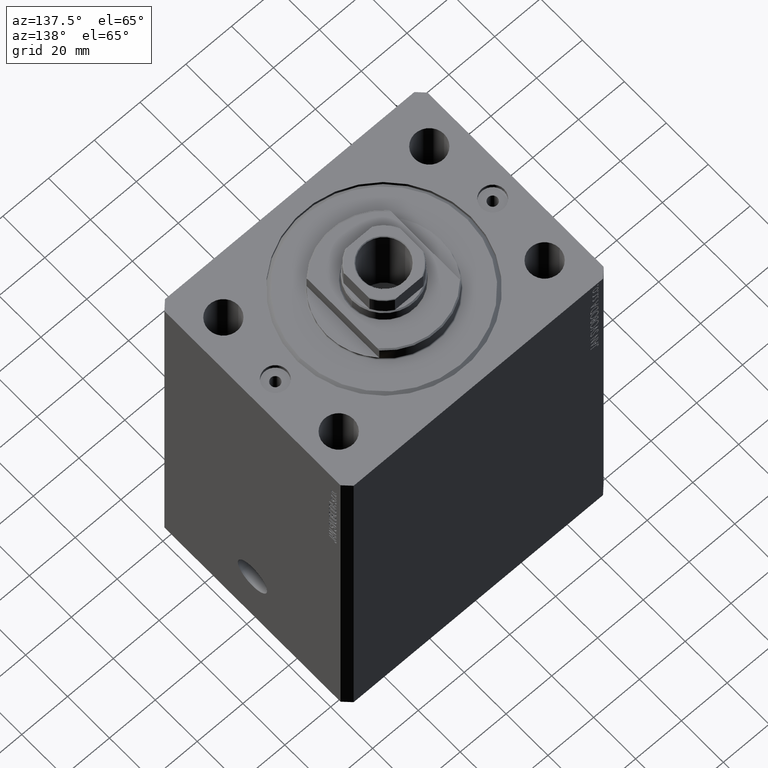
[diagram: clean part render]
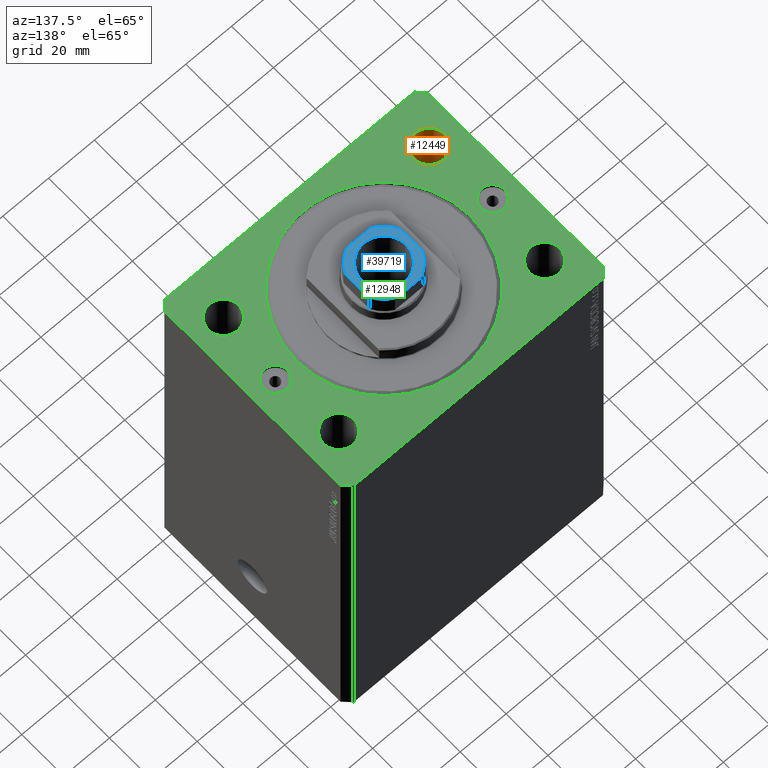
[diagram: same view with three faces highlighted in distinct colors, each labeled with its STEP entity id]
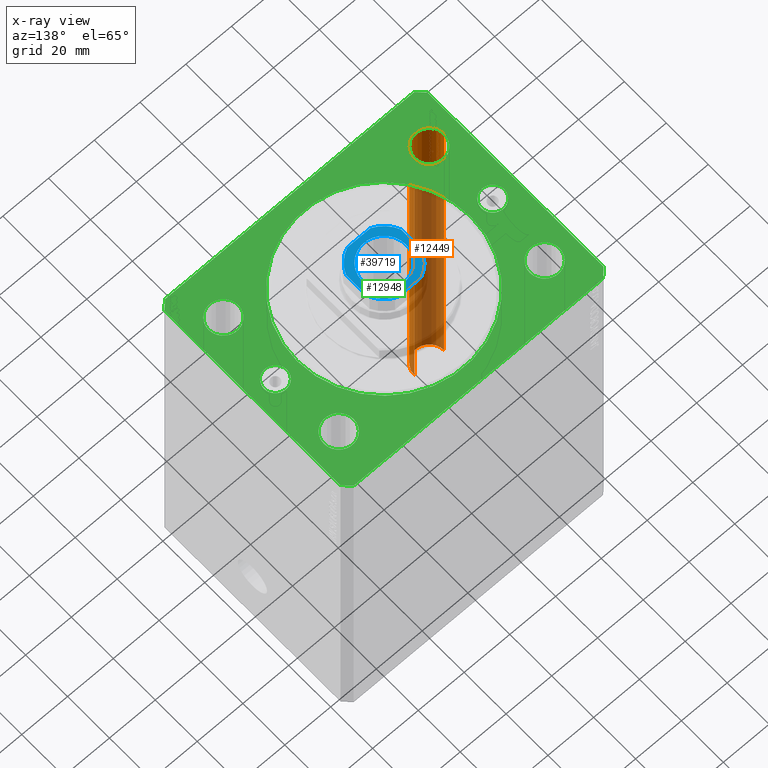
[diagram: x-ray of the same camera — body ghosted, the three highlighted faces saturated]
A machine part, auxiliary view with three faces highlighted in distinct colors.
The next image is the same camera in x-ray (body ghosted, the three faces saturated) — at least one of them is partly hidden behind the body in this view.
Their STEP definitions:

[orange] entity #12449 — the highlighted cylindrical surface (edge-blend (fillet) strip) has radius 6.5 mm, axis along (0, 0, 1).
#836 = CARTESIAN_POINT ( 'NONE',  ( -38.49999999999998579, -27.50000000000000355, 0.000000000000000000 ) ) ;
#7101 = DIRECTION ( 'NONE',  ( -0.000000000000000000, -0.000000000000000000, 1.000000000000000000 ) ) ;
#7331 = DIRECTION ( 'NONE',  ( 1.000000000000000000, 0.000000000000000000, 0.000000000000000000 ) ) ;
#7642 = AXIS2_PLACEMENT_3D ( 'NONE', #38198, #41782, #7645 ) ;
#7645 = DIRECTION ( 'NONE',  ( 1.000000000000000000, 0.000000000000000000, 0.000000000000000000 ) ) ;
#10354 = DIRECTION ( 'NONE',  ( -0.000000000000000000, -0.000000000000000000, -1.000000000000000000 ) ) ;
#11444 = EDGE_CURVE ( 'NONE', #30744, #38792, #21243, .T. ) ;
#11985 = ORIENTED_EDGE ( 'NONE', *, *, #11444, .T. ) ;
#12449 = ADVANCED_FACE ( 'NONE', ( #31910 ), #28312, .F. ) ;
#13324 = AXIS2_PLACEMENT_3D ( 'NONE', #14516, #27793, #7331 ) ;
#14516 = CARTESIAN_POINT ( 'NONE',  ( -44.99999999999998579, -27.50000000000000355, 0.000000000000000000 ) ) ;
#16481 = EDGE_CURVE ( 'NONE', #38792, #25989, #36852, .T. ) ;
#16499 = ORIENTED_EDGE ( 'NONE', *, *, #16481, .T. ) ;
#18422 = CARTESIAN_POINT ( 'NONE',  ( -38.49999999999998579, -27.50000000000000355, -165.0000000000000000 ) ) ;
#21243 = CIRCLE ( 'NONE', #39167, 6.499999999999999112 ) ;
#22079 = VECTOR ( 'NONE', #40430, 1000.000000000000000 ) ;
#22365 = VERTEX_POINT ( 'NONE', #836 ) ;
#23513 = LINE ( 'NONE', #34510, #33364 ) ;
#24059 = DIRECTION ( 'NONE',  ( 1.000000000000000000, 0.000000000000000000, 0.000000000000000000 ) ) ;
#25298 = ORIENTED_EDGE ( 'NONE', *, *, #27549, .F. ) ;
#25989 = VERTEX_POINT ( 'NONE', #28527 ) ;
#27549 = EDGE_CURVE ( 'NONE', #30744, #22365, #23513, .T. ) ;
#27793 = DIRECTION ( 'NONE',  ( 0.000000000000000000, 0.000000000000000000, 1.000000000000000000 ) ) ;
#28312 = CYLINDRICAL_SURFACE ( 'NONE', #7642, 6.499999999999999112 ) ;
#28448 = EDGE_LOOP ( 'NONE', ( #11985, #16499, #29927, #25298 ) ) ;
#28527 = CARTESIAN_POINT ( 'NONE',  ( -51.49999999999998579, -27.50000000000000355, 0.000000000000000000 ) ) ;
#29380 = EDGE_CURVE ( 'NONE', #25989, #22365, #42010, .T. ) ;
#29927 = ORIENTED_EDGE ( 'NONE', *, *, #29380, .T. ) ;
#30744 = VERTEX_POINT ( 'NONE', #18422 ) ;
#31910 = FACE_OUTER_BOUND ( 'NONE', #28448, .T. ) ;
#33364 = VECTOR ( 'NONE', #7101, 1000.000000000000000 ) ;
#33485 = CARTESIAN_POINT ( 'NONE',  ( -51.49999999999998579, -27.50000000000000355, -183.3847763108502420 ) ) ;
#34510 = CARTESIAN_POINT ( 'NONE',  ( -38.49999999999998579, -27.50000000000000355, -183.3847763108502420 ) ) ;
#36852 = LINE ( 'NONE', #33485, #22079 ) ;
#38198 = CARTESIAN_POINT ( 'NONE',  ( -44.99999999999998579, -27.50000000000000355, -183.3847763108502420 ) ) ;
#38792 = VERTEX_POINT ( 'NONE', #43252 ) ;
#39167 = AXIS2_PLACEMENT_3D ( 'NONE', #41123, #10354, #24059 ) ;
#40430 = DIRECTION ( 'NONE',  ( -0.000000000000000000, -0.000000000000000000, 1.000000000000000000 ) ) ;
#41123 = CARTESIAN_POINT ( 'NONE',  ( -44.99999999999998579, -27.50000000000000355, -165.0000000000000000 ) ) ;
#41782 = DIRECTION ( 'NONE',  ( -0.000000000000000000, -0.000000000000000000, 1.000000000000000000 ) ) ;
#42010 = CIRCLE ( 'NONE', #13324, 6.499999999999999112 ) ;
#43252 = CARTESIAN_POINT ( 'NONE',  ( -51.49999999999998579, -27.50000000000000355, -165.0000000000000000 ) ) ;

[blue] entity #39719 — the highlighted planar face has unit normal (0, 0, 1).
#377 = DIRECTION ( 'NONE',  ( -1.000000000000000000, -7.228014483236695816E-17, -0.000000000000000000 ) ) ;
#1136 = DIRECTION ( 'NONE',  ( 1.000000000000000000, 0.000000000000000000, 0.000000000000000000 ) ) ;
#1158 = EDGE_CURVE ( 'NONE', #21856, #3444, #20255, .T. ) ;
#1387 = ORIENTED_EDGE ( 'NONE', *, *, #28783, .T. ) ;
#1612 = DIRECTION ( 'NONE',  ( 1.000000000000000000, 0.000000000000000000, 0.000000000000000000 ) ) ;
#1756 = AXIS2_PLACEMENT_3D ( 'NONE', #27661, #10355, #13735 ) ;
#2599 = VERTEX_POINT ( 'NONE', #6054 ) ;
#3444 = VERTEX_POINT ( 'NONE', #24808 ) ;
#3700 = VERTEX_POINT ( 'NONE', #19281 ) ;
#4464 = VERTEX_POINT ( 'NONE', #10380 ) ;
#4584 = ORIENTED_EDGE ( 'NONE', *, *, #43775, .T. ) ;
#6054 = CARTESIAN_POINT ( 'NONE',  ( 12.00000000000000178, -4.999999999999990230, 167.1000000000000227 ) ) ;
#6152 = CARTESIAN_POINT ( 'NONE',  ( 0.000000000000000000, 0.000000000000000000, 167.1000000000000227 ) ) ;
#6221 = ORIENTED_EDGE ( 'NONE', *, *, #7971, .T. ) ;
#6633 = ORIENTED_EDGE ( 'NONE', *, *, #1158, .T. ) ;
#6912 = EDGE_CURVE ( 'NONE', #3700, #40503, #24494, .T. ) ;
#7780 = CARTESIAN_POINT ( 'NONE',  ( -4.999999999999992895, -12.00000000000000178, 167.1000000000000227 ) ) ;
#7971 = EDGE_CURVE ( 'NONE', #4464, #20035, #31185, .T. ) ;
#8189 = CARTESIAN_POINT ( 'NONE',  ( -11.99999999999999645, -12.00000000000000178, 167.1000000000000227 ) ) ;
#9521 = DIRECTION ( 'NONE',  ( 1.000000000000000000, 0.000000000000000000, 0.000000000000000000 ) ) ;
#10051 = ORIENTED_EDGE ( 'NONE', *, *, #38568, .T. ) ;
#10091 = ORIENTED_EDGE ( 'NONE', *, *, #27821, .T. ) ;
#10355 = DIRECTION ( 'NONE',  ( -0.000000000000000000, 0.000000000000000000, 1.000000000000000000 ) ) ;
#10380 = CARTESIAN_POINT ( 'NONE',  ( -9.550000000000002487, 1.169537693185722755E-15, 167.1000000000000227 ) ) ;
#10650 = ORIENTED_EDGE ( 'NONE', *, *, #24002, .T. ) ;
#11102 = CARTESIAN_POINT ( 'NONE',  ( -5.000000000000001776, 11.99999999999999822, 167.1000000000000227 ) ) ;
#11607 = FACE_OUTER_BOUND ( 'NONE', #27260, .T. ) ;
#12477 = CARTESIAN_POINT ( 'NONE',  ( 12.00000000000000178, 4.999999999999994671, 167.1000000000000227 ) ) ;
#12729 = AXIS2_PLACEMENT_3D ( 'NONE', #31400, #24648, #41934 ) ;
#13648 = ORIENTED_EDGE ( 'NONE', *, *, #39463, .T. ) ;
#13735 = DIRECTION ( 'NONE',  ( 1.000000000000000000, 0.000000000000000000, 0.000000000000000000 ) ) ;
#14392 = DIRECTION ( 'NONE',  ( 7.228014483236695816E-17, -1.000000000000000000, 0.000000000000000000 ) ) ;
#15589 = VECTOR ( 'NONE', #377, 1000.000000000000000 ) ;
#16017 = CIRCLE ( 'NONE', #34685, 13.00000000000000000 ) ;
#16084 = VECTOR ( 'NONE', #14392, 1000.000000000000000 ) ;
#16714 = DIRECTION ( 'NONE',  ( -0.000000000000000000, 0.000000000000000000, 1.000000000000000000 ) ) ;
#17085 = CARTESIAN_POINT ( 'NONE',  ( 12.00000000000000000, 12.00000000000000000, 167.1000000000000227 ) ) ;
#18032 = CARTESIAN_POINT ( 'NONE',  ( 0.000000000000000000, 0.000000000000000000, 167.1000000000000227 ) ) ;
#19281 = CARTESIAN_POINT ( 'NONE',  ( -11.99999999999999822, 5.000000000000000888, 167.1000000000000227 ) ) ;
#20035 = VERTEX_POINT ( 'NONE', #34736 ) ;
#20255 = CIRCLE ( 'NONE', #31739, 13.00000000000000000 ) ;
#20450 = EDGE_LOOP ( 'NONE', ( #13648, #6221 ) ) ;
#20452 = DIRECTION ( 'NONE',  ( -1.445602896647339163E-16, 1.000000000000000000, -0.000000000000000000 ) ) ;
#21153 = AXIS2_PLACEMENT_3D ( 'NONE', #18032, #33004, #1136 ) ;
#21856 = VERTEX_POINT ( 'NONE', #12477 ) ;
#21897 = DIRECTION ( 'NONE',  ( 1.000000000000000000, 7.228014483236695816E-17, 0.000000000000000000 ) ) ;
#22955 = VERTEX_POINT ( 'NONE', #11102 ) ;
#23771 = ORIENTED_EDGE ( 'NONE', *, *, #31067, .T. ) ;
#24002 = EDGE_CURVE ( 'NONE', #38849, #2599, #16017, .T. ) ;
#24494 = LINE ( 'NONE', #41997, #16084 ) ;
#24648 = DIRECTION ( 'NONE',  ( -0.000000000000000000, 0.000000000000000000, 1.000000000000000000 ) ) ;
#24666 = LINE ( 'NONE', #38147, #15589 ) ;
#24808 = CARTESIAN_POINT ( 'NONE',  ( 5.000000000000002665, 12.00000000000000000, 167.1000000000000227 ) ) ;
#25297 = FACE_BOUND ( 'NONE', #20450, .T. ) ;
#26914 = CIRCLE ( 'NONE', #1756, 13.00000000000000000 ) ;
#27260 = EDGE_LOOP ( 'NONE', ( #31174, #1387, #23771, #10650, #10051, #6633, #4584, #10091 ) ) ;
#27499 = CARTESIAN_POINT ( 'NONE',  ( 0.000000000000000000, 0.000000000000000000, 167.1000000000000227 ) ) ;
#27661 = CARTESIAN_POINT ( 'NONE',  ( 0.000000000000000000, 0.000000000000000000, 167.1000000000000227 ) ) ;
#27778 = VECTOR ( 'NONE', #20452, 1000.000000000000000 ) ;
#27821 = EDGE_CURVE ( 'NONE', #22955, #3700, #26914, .T. ) ;
#28030 = PLANE ( 'NONE',  #12729 ) ;
#28430 = LINE ( 'NONE', #8189, #44225 ) ;
#28531 = CARTESIAN_POINT ( 'NONE',  ( 0.000000000000000000, 0.000000000000000000, 167.1000000000000227 ) ) ;
#28783 = EDGE_CURVE ( 'NONE', #40503, #37164, #31238, .T. ) ;
#28960 = DIRECTION ( 'NONE',  ( 0.000000000000000000, -0.000000000000000000, -1.000000000000000000 ) ) ;
#31067 = EDGE_CURVE ( 'NONE', #37164, #38849, #28430, .T. ) ;
#31174 = ORIENTED_EDGE ( 'NONE', *, *, #6912, .T. ) ;
#31185 = CIRCLE ( 'NONE', #21153, 9.550000000000002487 ) ;
#31238 = CIRCLE ( 'NONE', #32679, 13.00000000000000000 ) ;
#31399 = CIRCLE ( 'NONE', #37839, 9.550000000000002487 ) ;
#31400 = CARTESIAN_POINT ( 'NONE',  ( 0.000000000000000000, 0.000000000000000000, 167.1000000000000227 ) ) ;
#31739 = AXIS2_PLACEMENT_3D ( 'NONE', #6152, #16714, #9521 ) ;
#31830 = LINE ( 'NONE', #17085, #27778 ) ;
#32679 = AXIS2_PLACEMENT_3D ( 'NONE', #27499, #34471, #40518 ) ;
#33004 = DIRECTION ( 'NONE',  ( 0.000000000000000000, -0.000000000000000000, -1.000000000000000000 ) ) ;
#34471 = DIRECTION ( 'NONE',  ( -0.000000000000000000, 0.000000000000000000, 1.000000000000000000 ) ) ;
#34685 = AXIS2_PLACEMENT_3D ( 'NONE', #39406, #35814, #1612 ) ;
#34736 = CARTESIAN_POINT ( 'NONE',  ( 9.550000000000002487, 0.000000000000000000, 167.1000000000000227 ) ) ;
#35814 = DIRECTION ( 'NONE',  ( -0.000000000000000000, 0.000000000000000000, 1.000000000000000000 ) ) ;
#37164 = VERTEX_POINT ( 'NONE', #7780 ) ;
#37839 = AXIS2_PLACEMENT_3D ( 'NONE', #28531, #28960, #42657 ) ;
#38147 = CARTESIAN_POINT ( 'NONE',  ( -11.99999999999999822, 11.99999999999999822, 167.1000000000000227 ) ) ;
#38517 = CARTESIAN_POINT ( 'NONE',  ( 4.999999999999993783, -12.00000000000000178, 167.1000000000000227 ) ) ;
#38568 = EDGE_CURVE ( 'NONE', #2599, #21856, #31830, .T. ) ;
#38849 = VERTEX_POINT ( 'NONE', #38517 ) ;
#39406 = CARTESIAN_POINT ( 'NONE',  ( 0.000000000000000000, 0.000000000000000000, 167.1000000000000227 ) ) ;
#39463 = EDGE_CURVE ( 'NONE', #20035, #4464, #31399, .T. ) ;
#39719 = ADVANCED_FACE ( 'NONE', ( #25297, #11607 ), #28030, .T. ) ;
#40503 = VERTEX_POINT ( 'NONE', #41716 ) ;
#40518 = DIRECTION ( 'NONE',  ( 1.000000000000000000, 0.000000000000000000, 0.000000000000000000 ) ) ;
#41716 = CARTESIAN_POINT ( 'NONE',  ( -11.99999999999999822, -5.000000000000001776, 167.1000000000000227 ) ) ;
#41934 = DIRECTION ( 'NONE',  ( 1.000000000000000000, 0.000000000000000000, 0.000000000000000000 ) ) ;
#41997 = CARTESIAN_POINT ( 'NONE',  ( -11.99999999999999822, 11.99999999999999822, 167.1000000000000227 ) ) ;
#42657 = DIRECTION ( 'NONE',  ( 1.000000000000000000, 0.000000000000000000, 0.000000000000000000 ) ) ;
#43775 = EDGE_CURVE ( 'NONE', #3444, #22955, #24666, .T. ) ;
#44225 = VECTOR ( 'NONE', #21897, 1000.000000000000000 ) ;

[green] entity #12948 — the highlighted planar face has unit normal (0, 0, 1).
#104 = FACE_BOUND ( 'NONE', #5875, .T. ) ;
#461 = CARTESIAN_POINT ( 'NONE',  ( -57.50000000000000711, -42.00000000000000711, 0.000000000000000000 ) ) ;
#588 = EDGE_CURVE ( 'NONE', #21328, #4217, #21062, .T. ) ;
#836 = CARTESIAN_POINT ( 'NONE',  ( -38.49999999999998579, -27.50000000000000355, 0.000000000000000000 ) ) ;
#1527 = EDGE_CURVE ( 'NONE', #27226, #35218, #19552, .T. ) ;
#1626 = LINE ( 'NONE', #22126, #11945 ) ;
#1850 = ORIENTED_EDGE ( 'NONE', *, *, #35269, .F. ) ;
#1910 = CARTESIAN_POINT ( 'NONE',  ( -54.50000000000000711, -45.00000000000000000, 0.000000000000000000 ) ) ;
#2472 = VERTEX_POINT ( 'NONE', #4511 ) ;
#2633 = CIRCLE ( 'NONE', #20585, 6.499999999999999112 ) ;
#3392 = DIRECTION ( 'NONE',  ( 1.000000000000000000, 1.273191542001326317E-16, 0.000000000000000000 ) ) ;
#3478 = VECTOR ( 'NONE', #20245, 1000.000000000000000 ) ;
#3822 = CARTESIAN_POINT ( 'NONE',  ( 54.50000000000059686, 45.00000000000002842, 0.000000000000000000 ) ) ;
#3849 = DIRECTION ( 'NONE',  ( 0.7071067811865491270, -0.7071067811865459074, 0.000000000000000000 ) ) ;
#3938 = AXIS2_PLACEMENT_3D ( 'NONE', #29690, #33735, #13064 ) ;
#4110 = AXIS2_PLACEMENT_3D ( 'NONE', #29058, #35353, #38946 ) ;
#4213 = EDGE_LOOP ( 'NONE', ( #18303, #33995 ) ) ;
#4217 = VERTEX_POINT ( 'NONE', #14267 ) ;
#4264 = CIRCLE ( 'NONE', #10004, 6.499999999999999112 ) ;
#4467 = AXIS2_PLACEMENT_3D ( 'NONE', #16455, #16227, #9925 ) ;
#4511 = CARTESIAN_POINT ( 'NONE',  ( 42.50000000000000000, 6.123233995736762338E-16, 0.000000000000000000 ) ) ;
#4677 = DIRECTION ( 'NONE',  ( 1.000000000000000000, 0.000000000000000000, 0.000000000000000000 ) ) ;
#4898 = DIRECTION ( 'NONE',  ( 0.000000000000000000, 0.000000000000000000, 1.000000000000000000 ) ) ;
#5039 = DIRECTION ( 'NONE',  ( -1.000000000000000000, -2.546383084002638829E-16, 0.000000000000000000 ) ) ;
#5497 = VECTOR ( 'NONE', #28998, 1000.000000000000000 ) ;
#5720 = AXIS2_PLACEMENT_3D ( 'NONE', #10986, #17736, #4677 ) ;
#5843 = ORIENTED_EDGE ( 'NONE', *, *, #17723, .F. ) ;
#5875 = EDGE_LOOP ( 'NONE', ( #35295, #37720 ) ) ;
#6075 = VERTEX_POINT ( 'NONE', #8781 ) ;
#7134 = EDGE_LOOP ( 'NONE', ( #38360, #24825 ) ) ;
#7331 = DIRECTION ( 'NONE',  ( 1.000000000000000000, 0.000000000000000000, 0.000000000000000000 ) ) ;
#7516 = CARTESIAN_POINT ( 'NONE',  ( -57.49999999999998579, 42.00000000000000711, 0.000000000000000000 ) ) ;
#7932 = VERTEX_POINT ( 'NONE', #38471 ) ;
#8093 = CARTESIAN_POINT ( 'NONE',  ( 57.50000000000055422, 41.99999999999997868, 0.000000000000000000 ) ) ;
#8136 = DIRECTION ( 'NONE',  ( 1.000000000000000000, 0.000000000000000000, 0.000000000000000000 ) ) ;
#8225 = VERTEX_POINT ( 'NONE', #1910 ) ;
#8336 = ORIENTED_EDGE ( 'NONE', *, *, #37739, .T. ) ;
#8624 = CARTESIAN_POINT ( 'NONE',  ( -51.50000000000000000, 27.49999999999999645, 0.000000000000000000 ) ) ;
#8781 = CARTESIAN_POINT ( 'NONE',  ( 57.50000000000000711, -41.99999999999998579, 0.000000000000000000 ) ) ;
#8809 = EDGE_CURVE ( 'NONE', #38682, #30532, #29799, .T. ) ;
#9356 = CARTESIAN_POINT ( 'NONE',  ( 0.000000000000000000, 0.000000000000000000, 0.000000000000000000 ) ) ;
#9611 = DIRECTION ( 'NONE',  ( 0.000000000000000000, 0.000000000000000000, 1.000000000000000000 ) ) ;
#9694 = EDGE_LOOP ( 'NONE', ( #43820, #33335 ) ) ;
#9770 = CIRCLE ( 'NONE', #15519, 6.499999999999999112 ) ;
#9901 = VECTOR ( 'NONE', #42539, 1000.000000000000000 ) ;
#9923 = CARTESIAN_POINT ( 'NONE',  ( -54.50000000000000711, -45.00000000000000000, 0.000000000000000000 ) ) ;
#9925 = DIRECTION ( 'NONE',  ( 1.000000000000000000, 0.000000000000000000, 0.000000000000000000 ) ) ;
#9970 = EDGE_CURVE ( 'NONE', #26350, #6075, #36921, .T. ) ;
#10004 = AXIS2_PLACEMENT_3D ( 'NONE', #42421, #4898, #25795 ) ;
#10766 = LINE ( 'NONE', #11641, #30637 ) ;
#10986 = CARTESIAN_POINT ( 'NONE',  ( -44.99999999999998579, -27.50000000000000355, 0.000000000000000000 ) ) ;
#11345 = ORIENTED_EDGE ( 'NONE', *, *, #32431, .T. ) ;
#11641 = CARTESIAN_POINT ( 'NONE',  ( -54.49999999999999289, 45.00000000000000000, 0.000000000000000000 ) ) ;
#11945 = VECTOR ( 'NONE', #5039, 1000.000000000000000 ) ;
#12625 = CARTESIAN_POINT ( 'NONE',  ( -57.50000000000000711, -42.00000000000000711, 0.000000000000000000 ) ) ;
#12948 = ADVANCED_FACE ( 'NONE', ( #26663, #40799, #23736, #13631, #104, #16761, #43736, #16548 ), #40344, .T. ) ;
#13030 = CARTESIAN_POINT ( 'NONE',  ( -54.49999999999999289, 45.00000000000000000, 0.000000000000000000 ) ) ;
#13064 = DIRECTION ( 'NONE',  ( 1.000000000000000000, 0.000000000000000000, 0.000000000000000000 ) ) ;
#13226 = VERTEX_POINT ( 'NONE', #12625 ) ;
#13291 = AXIS2_PLACEMENT_3D ( 'NONE', #24773, #38477, #8136 ) ;
#13324 = AXIS2_PLACEMENT_3D ( 'NONE', #14516, #27793, #7331 ) ;
#13440 = DIRECTION ( 'NONE',  ( 1.000000000000000000, 0.000000000000000000, 0.000000000000000000 ) ) ;
#13631 = FACE_BOUND ( 'NONE', #21352, .T. ) ;
#13692 = DIRECTION ( 'NONE',  ( 0.000000000000000000, 0.000000000000000000, 1.000000000000000000 ) ) ;
#14184 = CIRCLE ( 'NONE', #42873, 6.499999999999999112 ) ;
#14267 = CARTESIAN_POINT ( 'NONE',  ( -42.50000000000000000, 0.000000000000000000, 0.000000000000000000 ) ) ;
#14400 = ORIENTED_EDGE ( 'NONE', *, *, #9970, .T. ) ;
#14434 = EDGE_CURVE ( 'NONE', #7932, #26284, #37087, .T. ) ;
#14516 = CARTESIAN_POINT ( 'NONE',  ( -44.99999999999998579, -27.50000000000000355, 0.000000000000000000 ) ) ;
#14530 = CARTESIAN_POINT ( 'NONE',  ( 38.49999999999998579, -27.50000000000000355, 0.000000000000000000 ) ) ;
#14702 = CARTESIAN_POINT ( 'NONE',  ( 52.50000000000000000, 0.000000000000000000, 0.000000000000000000 ) ) ;
#14715 = ORIENTED_EDGE ( 'NONE', *, *, #8809, .F. ) ;
#14859 = CARTESIAN_POINT ( 'NONE',  ( 57.50000000000055422, 41.99999999999997868, 0.000000000000000000 ) ) ;
#15411 = DIRECTION ( 'NONE',  ( 1.000000000000000000, 0.000000000000000000, 0.000000000000000000 ) ) ;
#15516 = LINE ( 'NONE', #14859, #5497 ) ;
#15519 = AXIS2_PLACEMENT_3D ( 'NONE', #15810, #43194, #33763 ) ;
#15810 = CARTESIAN_POINT ( 'NONE',  ( 44.99999999999998579, -27.50000000000000355, 0.000000000000000000 ) ) ;
#15922 = CARTESIAN_POINT ( 'NONE',  ( 45.00000000000000000, 27.49999999999999289, 0.000000000000000000 ) ) ;
#15932 = ORIENTED_EDGE ( 'NONE', *, *, #42770, .F. ) ;
#16039 = EDGE_CURVE ( 'NONE', #2472, #18903, #23494, .T. ) ;
#16057 = DIRECTION ( 'NONE',  ( 1.000000000000000000, 0.000000000000000000, 0.000000000000000000 ) ) ;
#16227 = DIRECTION ( 'NONE',  ( 0.000000000000000000, 0.000000000000000000, 1.000000000000000000 ) ) ;
#16244 = EDGE_CURVE ( 'NONE', #13226, #8225, #17138, .T. ) ;
#16455 = CARTESIAN_POINT ( 'NONE',  ( 45.00000000000000000, 27.49999999999999289, 0.000000000000000000 ) ) ;
#16484 = CARTESIAN_POINT ( 'NONE',  ( 54.50000000000000711, -44.99999999999998579, 0.000000000000000000 ) ) ;
#16548 = FACE_BOUND ( 'NONE', #7134, .T. ) ;
#16761 = FACE_BOUND ( 'NONE', #9694, .T. ) ;
#17061 = CARTESIAN_POINT ( 'NONE',  ( -45.00000000000000000, 27.49999999999999645, 0.000000000000000000 ) ) ;
#17138 = LINE ( 'NONE', #461, #28537 ) ;
#17555 = DIRECTION ( 'NONE',  ( 0.000000000000000000, 0.000000000000000000, 1.000000000000000000 ) ) ;
#17723 = EDGE_CURVE ( 'NONE', #33431, #26732, #4264, .T. ) ;
#17736 = DIRECTION ( 'NONE',  ( 0.000000000000000000, 0.000000000000000000, 1.000000000000000000 ) ) ;
#18303 = ORIENTED_EDGE ( 'NONE', *, *, #34141, .F. ) ;
#18479 = AXIS2_PLACEMENT_3D ( 'NONE', #37023, #40835, #13440 ) ;
#18588 = VERTEX_POINT ( 'NONE', #24427 ) ;
#18874 = EDGE_CURVE ( 'NONE', #18588, #13226, #21452, .T. ) ;
#18903 = VERTEX_POINT ( 'NONE', #14702 ) ;
#19313 = EDGE_CURVE ( 'NONE', #6075, #44333, #43836, .T. ) ;
#19552 = CIRCLE ( 'NONE', #4467, 6.499999999999999112 ) ;
#19867 = VECTOR ( 'NONE', #3392, 1000.000000000000000 ) ;
#20245 = DIRECTION ( 'NONE',  ( 6.443258625056715108E-15, 1.000000000000000000, 0.000000000000000000 ) ) ;
#20431 = DIRECTION ( 'NONE',  ( 1.000000000000000000, 0.000000000000000000, 0.000000000000000000 ) ) ;
#20521 = ORIENTED_EDGE ( 'NONE', *, *, #18874, .T. ) ;
#20585 = AXIS2_PLACEMENT_3D ( 'NONE', #17061, #13692, #20431 ) ;
#21062 = CIRCLE ( 'NONE', #28147, 4.999999999999997335 ) ;
#21328 = VERTEX_POINT ( 'NONE', #32640 ) ;
#21352 = EDGE_LOOP ( 'NONE', ( #1850, #14715 ) ) ;
#21452 = LINE ( 'NONE', #7516, #9901 ) ;
#21718 = ORIENTED_EDGE ( 'NONE', *, *, #40365, .F. ) ;
#22126 = CARTESIAN_POINT ( 'NONE',  ( 54.50000000000059686, 45.00000000000002842, 0.000000000000000000 ) ) ;
#22330 = EDGE_CURVE ( 'NONE', #22365, #25989, #25100, .T. ) ;
#22365 = VERTEX_POINT ( 'NONE', #836 ) ;
#23494 = CIRCLE ( 'NONE', #4110, 4.999999999999997335 ) ;
#23736 = FACE_BOUND ( 'NONE', #33294, .T. ) ;
#24159 = AXIS2_PLACEMENT_3D ( 'NONE', #9356, #30917, #30460 ) ;
#24427 = CARTESIAN_POINT ( 'NONE',  ( -57.49999999999998579, 42.00000000000000711, 0.000000000000000000 ) ) ;
#24773 = CARTESIAN_POINT ( 'NONE',  ( 44.99999999999998579, -27.50000000000000355, 0.000000000000000000 ) ) ;
#24825 = ORIENTED_EDGE ( 'NONE', *, *, #16039, .T. ) ;
#24868 = CARTESIAN_POINT ( 'NONE',  ( 38.00000000000000000, 0.000000000000000000, 0.000000000000000000 ) ) ;
#25100 = CIRCLE ( 'NONE', #5720, 6.499999999999999112 ) ;
#25430 = CARTESIAN_POINT ( 'NONE',  ( 51.49999999999998579, -27.50000000000000355, 0.000000000000000000 ) ) ;
#25795 = DIRECTION ( 'NONE',  ( 1.000000000000000000, 0.000000000000000000, 0.000000000000000000 ) ) ;
#25989 = VERTEX_POINT ( 'NONE', #28527 ) ;
#26284 = VERTEX_POINT ( 'NONE', #24868 ) ;
#26350 = VERTEX_POINT ( 'NONE', #36306 ) ;
#26663 = FACE_OUTER_BOUND ( 'NONE', #29561, .T. ) ;
#26732 = VERTEX_POINT ( 'NONE', #8624 ) ;
#27226 = VERTEX_POINT ( 'NONE', #28473 ) ;
#27712 = EDGE_CURVE ( 'NONE', #26284, #7932, #36247, .T. ) ;
#27793 = DIRECTION ( 'NONE',  ( 0.000000000000000000, 0.000000000000000000, 1.000000000000000000 ) ) ;
#27900 = EDGE_LOOP ( 'NONE', ( #5843, #15932 ) ) ;
#28147 = AXIS2_PLACEMENT_3D ( 'NONE', #32485, #39882, #15411 ) ;
#28473 = CARTESIAN_POINT ( 'NONE',  ( 51.50000000000000000, 27.49999999999999289, 0.000000000000000000 ) ) ;
#28527 = CARTESIAN_POINT ( 'NONE',  ( -51.49999999999998579, -27.50000000000000355, 0.000000000000000000 ) ) ;
#28537 = VECTOR ( 'NONE', #3849, 1000.000000000000114 ) ;
#28732 = ORIENTED_EDGE ( 'NONE', *, *, #16244, .T. ) ;
#28998 = DIRECTION ( 'NONE',  ( -0.7071067811865369146, 0.7071067811865581199, 0.000000000000000000 ) ) ;
#29058 = CARTESIAN_POINT ( 'NONE',  ( 47.50000000000000000, 0.000000000000000000, 0.000000000000000000 ) ) ;
#29095 = VECTOR ( 'NONE', #29736, 1000.000000000000000 ) ;
#29253 = CIRCLE ( 'NONE', #18479, 4.999999999999997335 ) ;
#29380 = EDGE_CURVE ( 'NONE', #25989, #22365, #42010, .T. ) ;
#29561 = EDGE_LOOP ( 'NONE', ( #44427, #37245, #20521, #28732, #11345, #14400, #33005, #8336 ) ) ;
#29690 = CARTESIAN_POINT ( 'NONE',  ( 0.000000000000000000, 0.000000000000000000, 0.000000000000000000 ) ) ;
#29736 = DIRECTION ( 'NONE',  ( 0.7071067811865483499, 0.7071067811865466846, 0.000000000000000000 ) ) ;
#29799 = CIRCLE ( 'NONE', #13291, 6.499999999999999112 ) ;
#29985 = DIRECTION ( 'NONE',  ( 0.000000000000000000, 0.000000000000000000, 1.000000000000000000 ) ) ;
#30460 = DIRECTION ( 'NONE',  ( 1.000000000000000000, 0.000000000000000000, -0.000000000000000000 ) ) ;
#30532 = VERTEX_POINT ( 'NONE', #25430 ) ;
#30637 = VECTOR ( 'NONE', #35027, 1000.000000000000000 ) ;
#30917 = DIRECTION ( 'NONE',  ( 0.000000000000000000, 0.000000000000000000, 1.000000000000000000 ) ) ;
#31093 = EDGE_CURVE ( 'NONE', #38296, #37902, #1626, .T. ) ;
#31257 = LINE ( 'NONE', #9923, #19867 ) ;
#31702 = CARTESIAN_POINT ( 'NONE',  ( -38.50000000000000000, 27.49999999999999645, 0.000000000000000000 ) ) ;
#31766 = ORIENTED_EDGE ( 'NONE', *, *, #1527, .F. ) ;
#32431 = EDGE_CURVE ( 'NONE', #8225, #26350, #31257, .T. ) ;
#32485 = CARTESIAN_POINT ( 'NONE',  ( -47.50000000000000000, 0.000000000000000000, 0.000000000000000000 ) ) ;
#32640 = CARTESIAN_POINT ( 'NONE',  ( -52.50000000000000000, 6.123233995736762338E-16, 0.000000000000000000 ) ) ;
#32708 = EDGE_CURVE ( 'NONE', #37902, #18588, #10766, .T. ) ;
#33005 = ORIENTED_EDGE ( 'NONE', *, *, #19313, .T. ) ;
#33294 = EDGE_LOOP ( 'NONE', ( #31766, #21718 ) ) ;
#33335 = ORIENTED_EDGE ( 'NONE', *, *, #14434, .F. ) ;
#33431 = VERTEX_POINT ( 'NONE', #31702 ) ;
#33735 = DIRECTION ( 'NONE',  ( 0.000000000000000000, 0.000000000000000000, 1.000000000000000000 ) ) ;
#33763 = DIRECTION ( 'NONE',  ( 1.000000000000000000, 0.000000000000000000, 0.000000000000000000 ) ) ;
#33970 = CARTESIAN_POINT ( 'NONE',  ( -47.50000000000000000, 0.000000000000000000, 0.000000000000000000 ) ) ;
#33995 = ORIENTED_EDGE ( 'NONE', *, *, #588, .F. ) ;
#34141 = EDGE_CURVE ( 'NONE', #4217, #21328, #37705, .T. ) ;
#34942 = AXIS2_PLACEMENT_3D ( 'NONE', #39853, #29985, #16057 ) ;
#35027 = DIRECTION ( 'NONE',  ( -0.7071067811865483499, -0.7071067811865466846, 0.000000000000000000 ) ) ;
#35218 = VERTEX_POINT ( 'NONE', #42534 ) ;
#35269 = EDGE_CURVE ( 'NONE', #30532, #38682, #9770, .T. ) ;
#35295 = ORIENTED_EDGE ( 'NONE', *, *, #22330, .F. ) ;
#35353 = DIRECTION ( 'NONE',  ( 0.000000000000000000, -0.000000000000000000, -1.000000000000000000 ) ) ;
#36247 = CIRCLE ( 'NONE', #3938, 38.00000000000000000 ) ;
#36306 = CARTESIAN_POINT ( 'NONE',  ( 54.50000000000000711, -44.99999999999998579, 0.000000000000000000 ) ) ;
#36921 = LINE ( 'NONE', #16484, #29095 ) ;
#37003 = AXIS2_PLACEMENT_3D ( 'NONE', #33970, #17555, #41366 ) ;
#37023 = CARTESIAN_POINT ( 'NONE',  ( 47.50000000000000000, 0.000000000000000000, 0.000000000000000000 ) ) ;
#37087 = CIRCLE ( 'NONE', #34942, 38.00000000000000000 ) ;
#37245 = ORIENTED_EDGE ( 'NONE', *, *, #32708, .T. ) ;
#37705 = CIRCLE ( 'NONE', #37003, 4.999999999999997335 ) ;
#37720 = ORIENTED_EDGE ( 'NONE', *, *, #29380, .F. ) ;
#37739 = EDGE_CURVE ( 'NONE', #44333, #38296, #15516, .T. ) ;
#37902 = VERTEX_POINT ( 'NONE', #13030 ) ;
#38296 = VERTEX_POINT ( 'NONE', #3822 ) ;
#38360 = ORIENTED_EDGE ( 'NONE', *, *, #39602, .T. ) ;
#38471 = CARTESIAN_POINT ( 'NONE',  ( -38.00000000000000000, 4.653657836759941941E-15, 0.000000000000000000 ) ) ;
#38477 = DIRECTION ( 'NONE',  ( 0.000000000000000000, 0.000000000000000000, 1.000000000000000000 ) ) ;
#38682 = VERTEX_POINT ( 'NONE', #14530 ) ;
#38946 = DIRECTION ( 'NONE',  ( 1.000000000000000000, 0.000000000000000000, 0.000000000000000000 ) ) ;
#39602 = EDGE_CURVE ( 'NONE', #18903, #2472, #29253, .T. ) ;
#39853 = CARTESIAN_POINT ( 'NONE',  ( 0.000000000000000000, 0.000000000000000000, 0.000000000000000000 ) ) ;
#39882 = DIRECTION ( 'NONE',  ( 0.000000000000000000, 0.000000000000000000, 1.000000000000000000 ) ) ;
#39955 = DIRECTION ( 'NONE',  ( 1.000000000000000000, 0.000000000000000000, 0.000000000000000000 ) ) ;
#40344 = PLANE ( 'NONE',  #24159 ) ;
#40365 = EDGE_CURVE ( 'NONE', #35218, #27226, #14184, .T. ) ;
#40799 = FACE_BOUND ( 'NONE', #27900, .T. ) ;
#40835 = DIRECTION ( 'NONE',  ( 0.000000000000000000, -0.000000000000000000, -1.000000000000000000 ) ) ;
#40901 = CARTESIAN_POINT ( 'NONE',  ( 57.50000000000000711, -41.99999999999998579, 0.000000000000000000 ) ) ;
#41366 = DIRECTION ( 'NONE',  ( 1.000000000000000000, 0.000000000000000000, 0.000000000000000000 ) ) ;
#42010 = CIRCLE ( 'NONE', #13324, 6.499999999999999112 ) ;
#42421 = CARTESIAN_POINT ( 'NONE',  ( -45.00000000000000000, 27.49999999999999645, 0.000000000000000000 ) ) ;
#42534 = CARTESIAN_POINT ( 'NONE',  ( 38.50000000000000000, 27.49999999999999289, 0.000000000000000000 ) ) ;
#42539 = DIRECTION ( 'NONE',  ( -2.478176394252581141E-16, -1.000000000000000000, 0.000000000000000000 ) ) ;
#42770 = EDGE_CURVE ( 'NONE', #26732, #33431, #2633, .T. ) ;
#42873 = AXIS2_PLACEMENT_3D ( 'NONE', #15922, #9611, #39955 ) ;
#43194 = DIRECTION ( 'NONE',  ( 0.000000000000000000, 0.000000000000000000, 1.000000000000000000 ) ) ;
#43736 = FACE_BOUND ( 'NONE', #4213, .T. ) ;
#43820 = ORIENTED_EDGE ( 'NONE', *, *, #27712, .F. ) ;
#43836 = LINE ( 'NONE', #40901, #3478 ) ;
#44333 = VERTEX_POINT ( 'NONE', #8093 ) ;
#44427 = ORIENTED_EDGE ( 'NONE', *, *, #31093, .T. ) ;